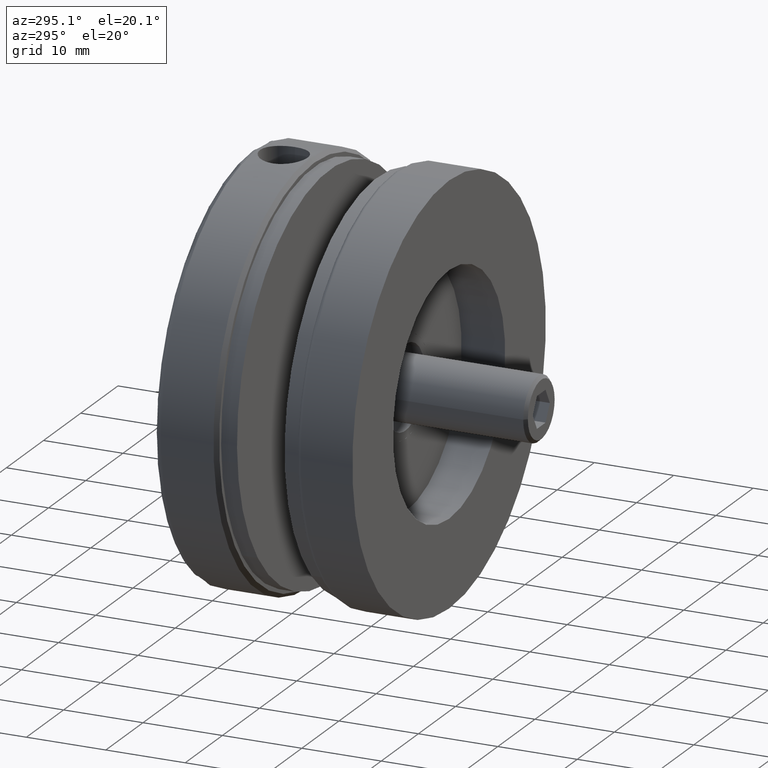
[diagram: clean part render]
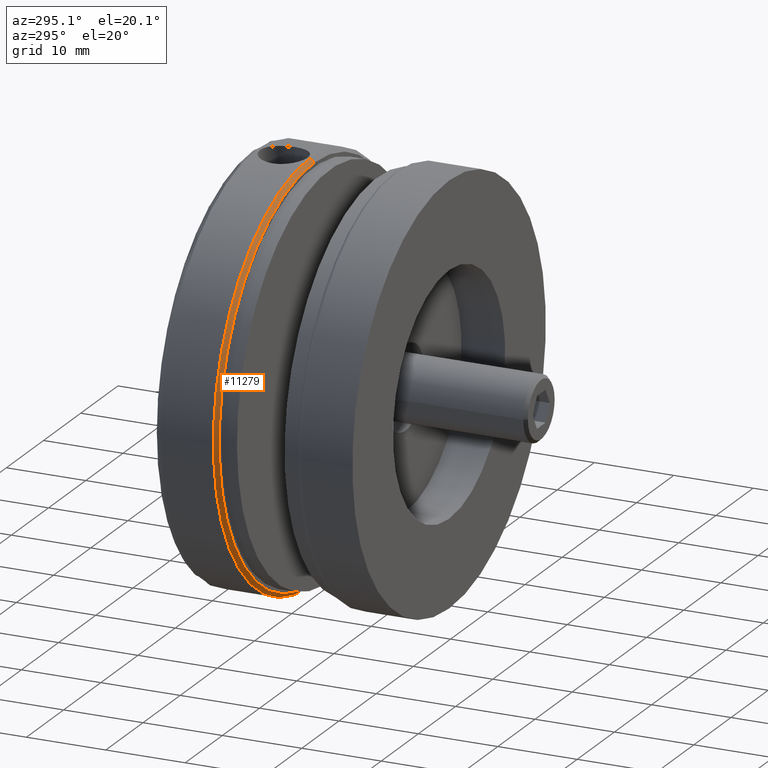
[diagram: same view with one face highlighted and labeled with its STEP entity id]
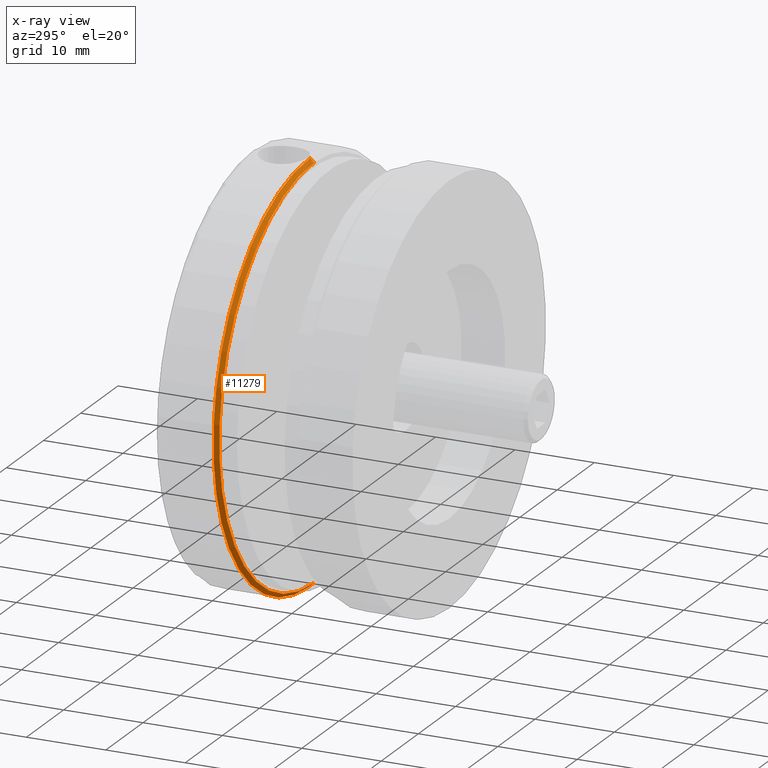
[diagram: x-ray of the same camera — body ghosted, the highlighted face saturated]
A machine part, auxiliary view. The second image highlights one B-rep face of the part: STEP entity #11279.
The next image is the same camera in x-ray: the body ghosted, the highlighted face saturated — about 0% of this face is hidden behind the body in this view.
In plain terms, the highlighted conical surface has half-angle 45 deg.
Its self-contained STEP definition (entity closure, byte-faithful):
#431 = AXIS2_PLACEMENT_3D ( 'NONE', #4557, #1166, #5519 ) ;
#866 = CARTESIAN_POINT ( 'NONE',  ( 26.00000000000000400, 0.5000000000000108800, 26.00000000000000000 ) ) ;
#1166 = DIRECTION ( 'NONE',  ( -0.0000000000000000000, -1.000000000000000000, -0.0000000000000000000 ) ) ;
#1257 = ORIENTED_EDGE ( 'NONE', *, *, #5163, .F. ) ;
#1731 = CARTESIAN_POINT ( 'NONE',  ( 26.00000000000000400, 0.0000000000000000000, -25.50000000000000000 ) ) ;
#2545 = DIRECTION ( 'NONE',  ( 0.0000000000000000000, 0.7071067811865549000, 0.7071067811865401300 ) ) ;
#2652 = VERTEX_POINT ( 'NONE', #12923 ) ;
#2922 = FACE_OUTER_BOUND ( 'NONE', #6195, .T. ) ;
#3314 = DIRECTION ( 'NONE',  ( 0.0000000000000000000, 0.0000000000000000000, 1.000000000000000000 ) ) ;
#4478 = AXIS2_PLACEMENT_3D ( 'NONE', #5650, #14804, #7966 ) ;
#4554 = CARTESIAN_POINT ( 'NONE',  ( 26.00000000000000000, 0.5000000000000108800, 0.0000000000000000000 ) ) ;
#4557 = CARTESIAN_POINT ( 'NONE',  ( 26.00000000000000000, 0.0000000000000000000, 0.0000000000000000000 ) ) ;
#5128 = CIRCLE ( 'NONE', #431, 25.50000000000000000 ) ;
#5163 = EDGE_CURVE ( 'NONE', #2652, #10815, #5128, .T. ) ;
#5190 = ORIENTED_EDGE ( 'NONE', *, *, #10741, .F. ) ;
#5219 = CONICAL_SURFACE ( 'NONE', #4478, 25.50000000000000000, 0.7853981633974378400 ) ;
#5421 = LINE ( 'NONE', #11249, #13850 ) ;
#5519 = DIRECTION ( 'NONE',  ( 0.0000000000000000000, 0.0000000000000000000, 1.000000000000000000 ) ) ;
#5650 = CARTESIAN_POINT ( 'NONE',  ( 26.00000000000000000, 0.0000000000000000000, 0.0000000000000000000 ) ) ;
#5737 = VERTEX_POINT ( 'NONE', #11520 ) ;
#6014 = ORIENTED_EDGE ( 'NONE', *, *, #9477, .F. ) ;
#6195 = EDGE_LOOP ( 'NONE', ( #5190, #1257, #10579, #6014 ) ) ;
#7537 = VERTEX_POINT ( 'NONE', #866 ) ;
#7966 = DIRECTION ( 'NONE',  ( 0.0000000000000000000, 0.0000000000000000000, 1.000000000000000000 ) ) ;
#9272 = CARTESIAN_POINT ( 'NONE',  ( 26.00000000000000000, 0.0000000000000000000, 25.50000000000000000 ) ) ;
#9477 = EDGE_CURVE ( 'NONE', #5737, #7537, #12088, .T. ) ;
#10579 = ORIENTED_EDGE ( 'NONE', *, *, #14040, .T. ) ;
#10741 = EDGE_CURVE ( 'NONE', #10815, #5737, #5421, .T. ) ;
#10815 = VERTEX_POINT ( 'NONE', #1731 ) ;
#11249 = CARTESIAN_POINT ( 'NONE',  ( 26.00000000000000400, 0.0000000000000000000, -25.50000000000000000 ) ) ;
#11279 = ADVANCED_FACE ( 'NONE', ( #2922 ), #5219, .T. ) ;
#11402 = DIRECTION ( 'NONE',  ( 8.659560562354842900E-017, 0.7071067811865549000, -0.7071067811865401300 ) ) ;
#11520 = CARTESIAN_POINT ( 'NONE',  ( 26.00000000000000000, 0.5000000000000108800, -26.00000000000000000 ) ) ;
#11661 = VECTOR ( 'NONE', #2545, 1000.000000000000000 ) ;
#12088 = CIRCLE ( 'NONE', #13871, 26.00000000000000000 ) ;
#12923 = CARTESIAN_POINT ( 'NONE',  ( 26.00000000000000000, 0.0000000000000000000, 25.50000000000000000 ) ) ;
#13850 = VECTOR ( 'NONE', #11402, 1000.000000000000000 ) ;
#13871 = AXIS2_PLACEMENT_3D ( 'NONE', #4554, #14775, #3314 ) ;
#14040 = EDGE_CURVE ( 'NONE', #2652, #7537, #14707, .T. ) ;
#14707 = LINE ( 'NONE', #9272, #11661 ) ;
#14775 = DIRECTION ( 'NONE',  ( 0.0000000000000000000, 1.000000000000000000, 0.0000000000000000000 ) ) ;
#14804 = DIRECTION ( 'NONE',  ( 0.0000000000000000000, 1.000000000000000000, 0.0000000000000000000 ) ) ;